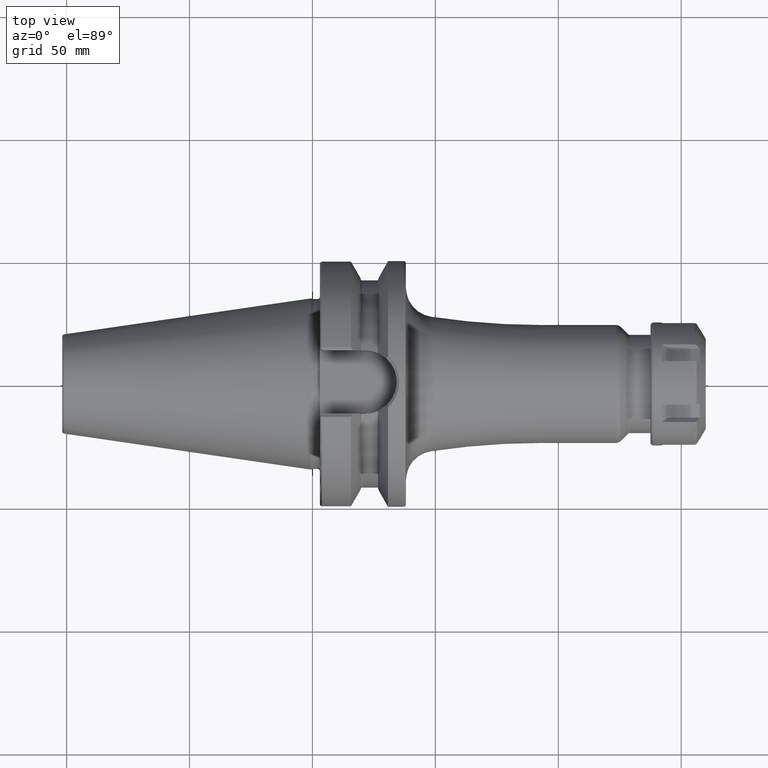
[diagram: clean part render]
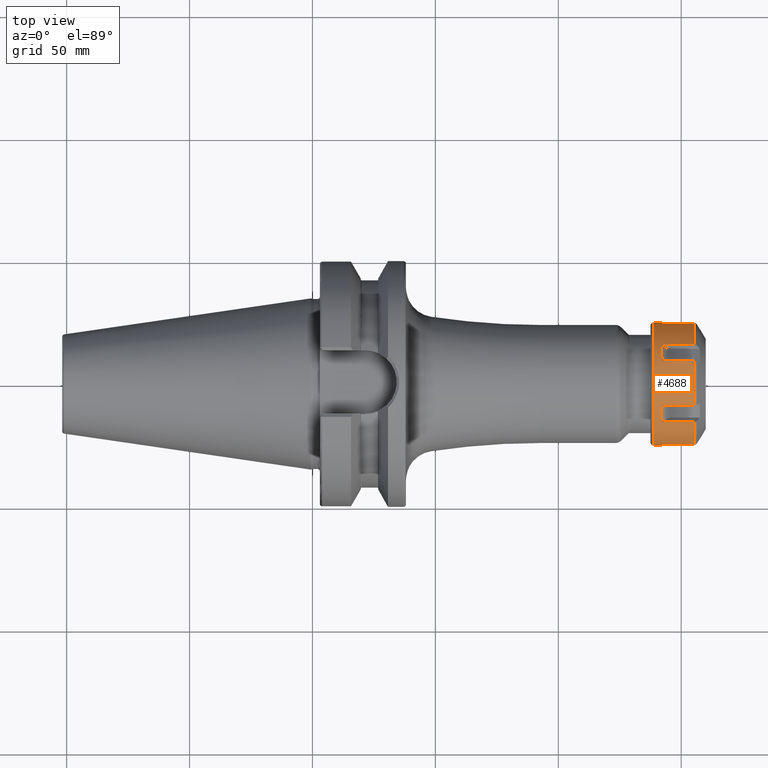
[diagram: same view with one face highlighted and labeled with its STEP entity id]
A machine part, top view. The second image highlights one B-rep face of the part: STEP entity #4688.
In plain terms, the highlighted cylindrical surface (partial cylindrical patch) has radius 25 mm, axis along (1, 0, 0).
Its self-contained STEP definition (entity closure, byte-faithful):
#3601=DIRECTION('',(-9.999994740307E-1,1.025640486187E-3,1.577133168835E-12));
#3602=VECTOR('',#3601,3.250001709401E0);
#3603=CARTESIAN_POINT('',(4.5E0,2.499666666667E1,1.417951640115E-14));
#3604=LINE('',#3603,#3602);
#3610=DIRECTION('',(-9.999994740307E-1,-1.025640486184E-3,-1.578379367537E-12));
#3611=VECTOR('',#3610,3.250001709401E0);
#3612=CARTESIAN_POINT('',(4.5E0,-2.499666666667E1,-1.240051271650E-14));
#3613=LINE('',#3612,#3611);
#3656=CARTESIAN_POINT('',(1.788119784648E1,1.577876823125E1,1.939150517893E1));
#3676=CARTESIAN_POINT('',(1.788119784648E1,2.468292021820E1,3.969061539222E0));
#3678=CARTESIAN_POINT('',(1.788119784648E1,-8.904151986948E0,2.336056671815E1));
#3698=CARTESIAN_POINT('',(1.788119784648E1,8.904151986948E0,2.336056671815E1));
#3700=CARTESIAN_POINT('',(1.788119784648E1,-2.468292021820E1,3.969061539222E0));
#3720=CARTESIAN_POINT('',(1.788119784648E1,-1.577876823125E1,1.939150517893E1));
#3930=DIRECTION('',(1.E0,0.E0,0.E0));
#3931=VECTOR('',#3930,1.307411806468E1);
#3932=CARTESIAN_POINT('',(4.807079781803E0,-2.468292021820E1,3.969061539222E0));
#3933=LINE('',#3932,#3931);
#3934=CARTESIAN_POINT('',(4.807079781803E0,-2.468292021820E1,3.969061539222E0));
#3935=CARTESIAN_POINT('',(4.729701493378E0,-2.476029850662E1,3.487859093522E0));
#3936=CARTESIAN_POINT('',(4.609219197891E0,-2.488166969100E1,2.550817383639E0));
#3937=CARTESIAN_POINT('',(4.504536623461E0,-2.498235226543E1,1.228026509027E0));
#3938=CARTESIAN_POINT('',(4.5E0,-2.499666666667E1,4.003888699202E-1));
#3939=CARTESIAN_POINT('',(4.5E0,-2.499666666667E1,-1.240051271650E-14));
#3941=CARTESIAN_POINT('',(1.25E0,0.E0,0.E0));
#3942=DIRECTION('',(-1.E0,0.E0,0.E0));
#3943=DIRECTION('',(0.E0,-1.E0,0.E0));
#3944=AXIS2_PLACEMENT_3D('',#3941,#3942,#3943);
#3946=CARTESIAN_POINT('',(4.5E0,2.499666666667E1,1.417951640115E-14));
#3947=CARTESIAN_POINT('',(4.5E0,2.499666666667E1,1.451714455632E-1));
#3948=CARTESIAN_POINT('',(4.487872521708E0,2.499903346707E1,4.463428212677E-1));
#3949=CARTESIAN_POINT('',(4.506996588005E0,2.498383245127E1,9.338081408940E-1));
#3950=CARTESIAN_POINT('',(4.530046438305E0,2.495973141581E1,1.454059244478E0));
#3951=CARTESIAN_POINT('',(4.569007848129E0,2.492105169613E1,2.013026454191E0));
#3952=CARTESIAN_POINT('',(4.624405857984E0,2.486557811087E1,2.614252934544E0));
#3953=CARTESIAN_POINT('',(4.700654693787E0,2.478934988654E1,3.262138709532E0));
#3954=CARTESIAN_POINT('',(4.768334245703E0,2.472166575430E1,3.728109624791E0));
#3955=CARTESIAN_POINT('',(4.807079781803E0,2.468292021820E1,3.969061539222E0));
#3957=DIRECTION('',(1.E0,0.E0,0.E0));
#3958=VECTOR('',#3957,1.307411806468E1);
#3959=CARTESIAN_POINT('',(4.807079781803E0,2.468292021820E1,3.969061539222E0));
#3960=LINE('',#3959,#3958);
#3961=CARTESIAN_POINT('',(1.788119784648E1,0.E0,0.E0));
#3962=DIRECTION('',(-1.E0,0.E0,0.E0));
#3963=DIRECTION('',(0.E0,6.311507292499E-1,7.756602071573E-1));
#3964=AXIS2_PLACEMENT_3D('',#3961,#3962,#3963);
#3966=DIRECTION('',(1.E0,0.E0,0.E0));
#3967=VECTOR('',#3966,1.307411806468E1);
#3968=CARTESIAN_POINT('',(4.807079781803E0,1.577876823125E1,1.939150517893E1));
#3969=LINE('',#3968,#3967);
#3970=CARTESIAN_POINT('',(4.807079781803E0,1.577876823125E1,1.939150517893E1));
#3971=CARTESIAN_POINT('',(4.381591242552E0,1.369997375277E1,2.108300957602E1));
#3972=CARTESIAN_POINT('',(4.381591242552E0,1.140843500467E1,2.240603008909E1));
#3973=CARTESIAN_POINT('',(4.807079781803E0,8.904151986948E0,2.336056671815E1));
#3975=DIRECTION('',(1.E0,0.E0,0.E0));
#3976=VECTOR('',#3975,1.307411806468E1);
#3977=CARTESIAN_POINT('',(4.807079781803E0,8.904151986948E0,2.336056671815E1));
#3978=LINE('',#3977,#3976);
#3979=CARTESIAN_POINT('',(1.788119784648E1,0.E0,0.E0));
#3980=DIRECTION('',(-1.E0,0.E0,0.E0));
#3981=DIRECTION('',(0.E0,-3.561660794779E-1,9.344226687262E-1));
#3982=AXIS2_PLACEMENT_3D('',#3979,#3980,#3981);
#3984=DIRECTION('',(1.E0,0.E0,0.E0));
#3985=VECTOR('',#3984,1.307411806468E1);
#3986=CARTESIAN_POINT('',(4.807079781803E0,-8.904151986948E0,2.336056671815E1));
#3987=LINE('',#3986,#3985);
#3988=CARTESIAN_POINT('',(4.807079781803E0,-8.904151986948E0,2.336056671815E1));
#3989=CARTESIAN_POINT('',(4.381591242552E0,-1.140843500467E1,2.240603008909E1));
#3990=CARTESIAN_POINT('',(4.381591242552E0,-1.369997375277E1,2.108300957602E1));
#3991=CARTESIAN_POINT('',(4.807079781803E0,-1.577876823125E1,1.939150517893E1));
#3993=DIRECTION('',(1.E0,0.E0,0.E0));
#3994=VECTOR('',#3993,1.307411806468E1);
#3995=CARTESIAN_POINT('',(4.807079781803E0,-1.577876823125E1,1.939150517893E1));
#3996=LINE('',#3995,#3994);
#3997=CARTESIAN_POINT('',(1.788119784648E1,0.E0,0.E0));
#3998=DIRECTION('',(-1.E0,0.E0,0.E0));
#3999=DIRECTION('',(0.E0,-9.873168087279E-1,1.587624615689E-1));
#4000=AXIS2_PLACEMENT_3D('',#3997,#3998,#3999);
#4160=CARTESIAN_POINT('',(1.25E0,2.5E1,0.E0));
#4161=CARTESIAN_POINT('',(1.25E0,-2.5E1,0.E0));
#4162=VERTEX_POINT('',#4160);
#4163=VERTEX_POINT('',#4161);
#4169=VERTEX_POINT('',#3676);
#4171=CARTESIAN_POINT('',(4.807079781803E0,2.468292021820E1,3.969061539222E0));
#4172=VERTEX_POINT('',#4171);
#4184=VERTEX_POINT('',#3698);
#4185=VERTEX_POINT('',#3656);
#4186=CARTESIAN_POINT('',(4.807079781803E0,8.904151986948E0,2.336056671815E1));
#4187=VERTEX_POINT('',#4186);
#4188=CARTESIAN_POINT('',(4.807079781803E0,1.577876823125E1,1.939150517893E1));
#4189=VERTEX_POINT('',#4188);
#4199=VERTEX_POINT('',#3720);
#4200=VERTEX_POINT('',#3678);
#4201=CARTESIAN_POINT('',(4.807079781803E0,-1.577876823125E1,1.939150517893E1));
#4202=VERTEX_POINT('',#4201);
#4203=CARTESIAN_POINT('',(4.807079781803E0,-8.904151986948E0,2.336056671815E1));
#4204=VERTEX_POINT('',#4203);
#4216=VERTEX_POINT('',#3700);
#4217=CARTESIAN_POINT('',(4.807079781803E0,-2.468292021820E1,3.969061539222E0));
#4218=VERTEX_POINT('',#4217);
#4256=CARTESIAN_POINT('',(4.5E0,-2.499666666667E1,-1.240051271650E-14));
#4257=VERTEX_POINT('',#4256);
#4258=CARTESIAN_POINT('',(4.5E0,2.499666666667E1,1.417951640115E-14));
#4259=VERTEX_POINT('',#4258);
#4657=CARTESIAN_POINT('',(-1.125E0,0.E0,0.E0));
#4658=DIRECTION('',(1.E0,0.E0,0.E0));
#4659=DIRECTION('',(0.E0,-1.E0,0.E0));
#4660=AXIS2_PLACEMENT_3D('',#4657,#4658,#4659);
#4661=CYLINDRICAL_SURFACE('',#4660,2.5E1);
#4662=ORIENTED_EDGE('',*,*,#4620,.F.);
#4663=ORIENTED_EDGE('',*,*,#4637,.T.);
#4664=ORIENTED_EDGE('',*,*,#4393,.T.);
#4666=ORIENTED_EDGE('',*,*,#4665,.T.);
#4667=ORIENTED_EDGE('',*,*,#4389,.F.);
#4669=ORIENTED_EDGE('',*,*,#4668,.T.);
#4671=ORIENTED_EDGE('',*,*,#4670,.T.);
#4672=ORIENTED_EDGE('',*,*,#4420,.F.);
#4673=ORIENTED_EDGE('',*,*,#4510,.F.);
#4675=ORIENTED_EDGE('',*,*,#4674,.T.);
#4677=ORIENTED_EDGE('',*,*,#4676,.T.);
#4678=ORIENTED_EDGE('',*,*,#4436,.F.);
#4680=ORIENTED_EDGE('',*,*,#4679,.F.);
#4682=ORIENTED_EDGE('',*,*,#4681,.T.);
#4684=ORIENTED_EDGE('',*,*,#4683,.T.);
#4685=ORIENTED_EDGE('',*,*,#4452,.F.);
#4686=EDGE_LOOP('',(#4662,#4663,#4664,#4666,#4667,#4669,#4671,#4672,#4673,#4675,
#4677,#4678,#4680,#4682,#4684,#4685));
#4687=FACE_OUTER_BOUND('',#4686,.F.);
#4688=ADVANCED_FACE('',(#4687),#4661,.T.);
#3940=B_SPLINE_CURVE_WITH_KNOTS('',3,(#3934,#3935,#3936,#3937,#3938,#3939),
.UNSPECIFIED.,.F.,.F.,(4,1,1,4),(0.E0,3.333333333333E-1,6.666666666667E-1,1.E0),
.UNSPECIFIED.);
#3945=CIRCLE('',#3944,2.5E1);
#3956=B_SPLINE_CURVE_WITH_KNOTS('',3,(#3946,#3947,#3948,#3949,#3950,#3951,#3952,
#3953,#3954,#3955),.UNSPECIFIED.,.F.,.F.,(4,1,1,1,1,1,1,4),(0.E0,
1.428571428571E-1,2.857142857143E-1,4.285714285714E-1,5.714285714286E-1,
7.142857142857E-1,8.571428571429E-1,1.E0),.UNSPECIFIED.);
#3965=CIRCLE('',#3964,2.5E1);
#3974=B_SPLINE_CURVE_WITH_KNOTS('',3,(#3970,#3971,#3972,#3973),.UNSPECIFIED.,
.F.,.F.,(4,4),(0.E0,1.E0),.UNSPECIFIED.);
#3983=CIRCLE('',#3982,2.5E1);
#3992=B_SPLINE_CURVE_WITH_KNOTS('',3,(#3988,#3989,#3990,#3991),.UNSPECIFIED.,
.F.,.F.,(4,4),(0.E0,1.E0),.UNSPECIFIED.);
#4001=CIRCLE('',#4000,2.5E1);
#4389=EDGE_CURVE('',#4259,#4162,#3604,.T.);
#4393=EDGE_CURVE('',#4257,#4163,#3613,.T.);
#4420=EDGE_CURVE('',#4185,#4169,#3965,.T.);
#4436=EDGE_CURVE('',#4200,#4184,#3983,.T.);
#4452=EDGE_CURVE('',#4216,#4199,#4001,.T.);
#4510=EDGE_CURVE('',#4189,#4185,#3969,.T.);
#4620=EDGE_CURVE('',#4218,#4216,#3933,.T.);
#4637=EDGE_CURVE('',#4218,#4257,#3940,.T.);
#4665=EDGE_CURVE('',#4163,#4162,#3945,.T.);
#4668=EDGE_CURVE('',#4259,#4172,#3956,.T.);
#4670=EDGE_CURVE('',#4172,#4169,#3960,.T.);
#4674=EDGE_CURVE('',#4189,#4187,#3974,.T.);
#4676=EDGE_CURVE('',#4187,#4184,#3978,.T.);
#4679=EDGE_CURVE('',#4204,#4200,#3987,.T.);
#4681=EDGE_CURVE('',#4204,#4202,#3992,.T.);
#4683=EDGE_CURVE('',#4202,#4199,#3996,.T.);